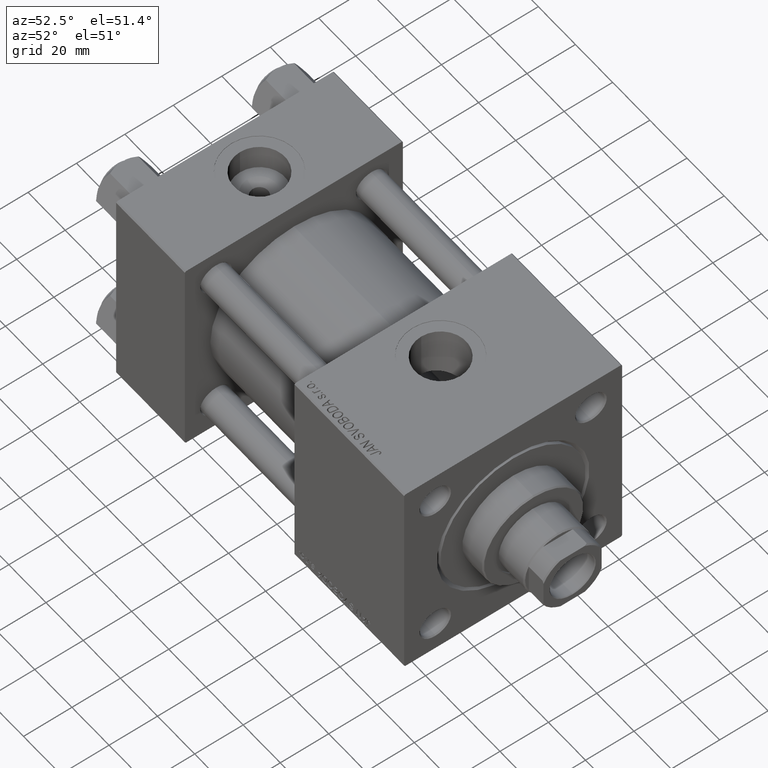
[diagram: clean part render]
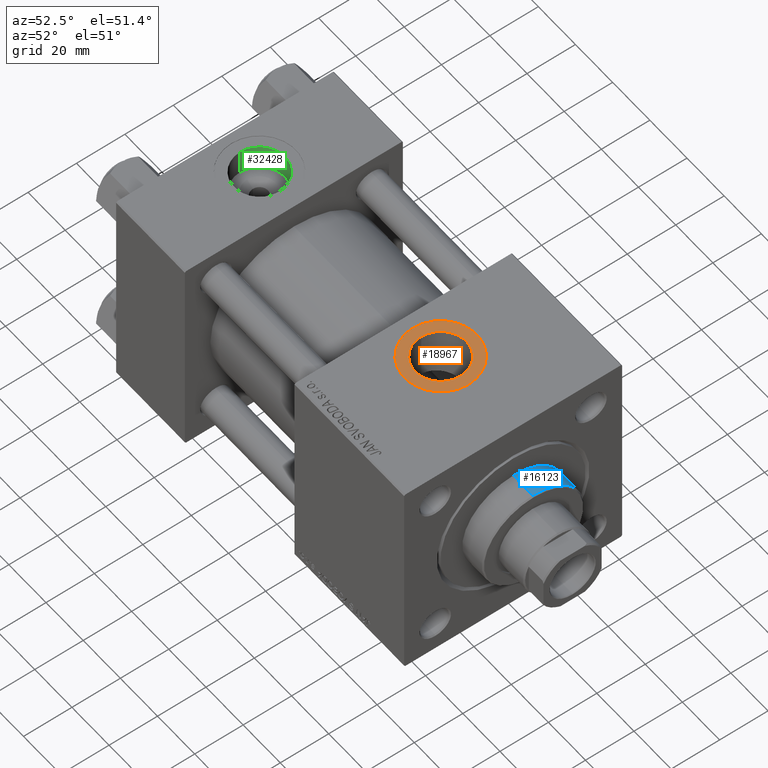
[diagram: same view with three faces highlighted in distinct colors, each labeled with its STEP entity id]
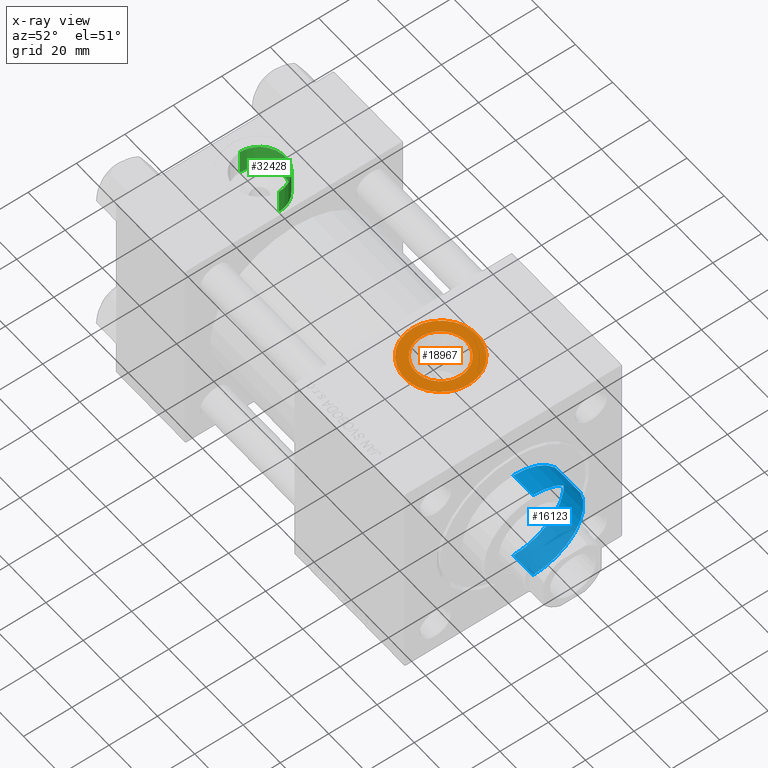
[diagram: x-ray of the same camera — body ghosted, the three highlighted faces saturated]
A machine part, auxiliary view with three faces highlighted in distinct colors.
The next image is the same camera in x-ray (body ghosted, the three faces saturated) — at least one of them is partly hidden behind the body in this view.
Their STEP definitions:

[orange] entity #18967 — the highlighted planar face has unit normal (0, 0, 1).
#4692 = CIRCLE ( 'NONE', #21687, 15.00000000000000000 ) ;
#4967 = PLANE ( 'NONE',  #12542 ) ;
#7073 = DIRECTION ( 'NONE',  ( 1.000000000000000000, 0.000000000000000000, 0.000000000000000000 ) ) ;
#8277 = FACE_OUTER_BOUND ( 'NONE', #14888, .T. ) ;
#8520 = DIRECTION ( 'NONE',  ( 1.000000000000000000, 0.000000000000000000, -0.000000000000000000 ) ) ;
#9937 = CARTESIAN_POINT ( 'NONE',  ( 126.4800000000000040, -5.655464058400803678E-15, 44.80000000000000426 ) ) ;
#10392 = CARTESIAN_POINT ( 'NONE',  ( 100.9999999999999858, -5.101923705186199578E-15, 44.80000000000000426 ) ) ;
#10630 = CARTESIAN_POINT ( 'NONE',  ( 116.0000000000000000, -6.938893903907229955E-15, 44.80000000000000426 ) ) ;
#11082 = FACE_BOUND ( 'NONE', #49132, .T. ) ;
#12283 = VERTEX_POINT ( 'NONE', #10392 ) ;
#12542 = AXIS2_PLACEMENT_3D ( 'NONE', #27306, #23248, #8520 ) ;
#13300 = CARTESIAN_POINT ( 'NONE',  ( 131.0000000000000000, -6.938893903907229955E-15, 44.80000000000000426 ) ) ;
#14888 = EDGE_LOOP ( 'NONE', ( #46369, #20458 ) ) ;
#18310 = DIRECTION ( 'NONE',  ( 1.000000000000000000, 0.000000000000000000, 0.000000000000000000 ) ) ;
#18967 = ADVANCED_FACE ( 'NONE', ( #11082, #8277 ), #4967, .T. ) ;
#19395 = EDGE_CURVE ( 'NONE', #39317, #12283, #19830, .T. ) ;
#19830 = CIRCLE ( 'NONE', #48239, 15.00000000000000000 ) ;
#20458 = ORIENTED_EDGE ( 'NONE', *, *, #26358, .T. ) ;
#21687 = AXIS2_PLACEMENT_3D ( 'NONE', #35565, #48030, #31533 ) ;
#22251 = ORIENTED_EDGE ( 'NONE', *, *, #33546, .T. ) ;
#22694 = CARTESIAN_POINT ( 'NONE',  ( 105.5199999999999960, -6.938893903907229955E-15, 44.80000000000000426 ) ) ;
#22853 = CARTESIAN_POINT ( 'NONE',  ( 116.0000000000000000, -6.938893903907229955E-15, 44.80000000000000426 ) ) ;
#23248 = DIRECTION ( 'NONE',  ( 0.000000000000000000, 0.000000000000000000, 1.000000000000000000 ) ) ;
#23453 = CIRCLE ( 'NONE', #49412, 10.48000000000000398 ) ;
#23522 = VERTEX_POINT ( 'NONE', #9937 ) ;
#24105 = AXIS2_PLACEMENT_3D ( 'NONE', #10630, #38024, #7073 ) ;
#24945 = EDGE_CURVE ( 'NONE', #47770, #23522, #26530, .T. ) ;
#25938 = DIRECTION ( 'NONE',  ( 0.000000000000000000, 0.000000000000000000, 1.000000000000000000 ) ) ;
#26358 = EDGE_CURVE ( 'NONE', #12283, #39317, #4692, .T. ) ;
#26530 = CIRCLE ( 'NONE', #24105, 10.48000000000000398 ) ;
#27306 = CARTESIAN_POINT ( 'NONE',  ( 116.0000000000000000, -6.938893903907229955E-15, 44.80000000000000426 ) ) ;
#29757 = CARTESIAN_POINT ( 'NONE',  ( 116.0000000000000000, -6.938893903907229955E-15, 44.80000000000000426 ) ) ;
#31533 = DIRECTION ( 'NONE',  ( 1.000000000000000000, 0.000000000000000000, 0.000000000000000000 ) ) ;
#33546 = EDGE_CURVE ( 'NONE', #23522, #47770, #23453, .T. ) ;
#34765 = DIRECTION ( 'NONE',  ( 1.000000000000000000, 0.000000000000000000, 0.000000000000000000 ) ) ;
#35565 = CARTESIAN_POINT ( 'NONE',  ( 116.0000000000000000, -6.938893903907229955E-15, 44.80000000000000426 ) ) ;
#38024 = DIRECTION ( 'NONE',  ( -0.000000000000000000, -0.000000000000000000, -1.000000000000000000 ) ) ;
#39317 = VERTEX_POINT ( 'NONE', #13300 ) ;
#45999 = ORIENTED_EDGE ( 'NONE', *, *, #24945, .T. ) ;
#46369 = ORIENTED_EDGE ( 'NONE', *, *, #19395, .T. ) ;
#47770 = VERTEX_POINT ( 'NONE', #22694 ) ;
#48030 = DIRECTION ( 'NONE',  ( 0.000000000000000000, 0.000000000000000000, 1.000000000000000000 ) ) ;
#48239 = AXIS2_PLACEMENT_3D ( 'NONE', #29757, #25938, #18310 ) ;
#49132 = EDGE_LOOP ( 'NONE', ( #45999, #22251 ) ) ;
#49412 = AXIS2_PLACEMENT_3D ( 'NONE', #22853, #50029, #34765 ) ;
#50029 = DIRECTION ( 'NONE',  ( -0.000000000000000000, -0.000000000000000000, -1.000000000000000000 ) ) ;

[blue] entity #16123 — the highlighted cylindrical surface (partial cylindrical patch) has radius 21 mm, axis along (-1, -0, 0).
#961 = AXIS2_PLACEMENT_3D ( 'NONE', #30931, #11870, #50224 ) ;
#1261 = DIRECTION ( 'NONE',  ( -0.000000000000000000, -0.000000000000000000, -1.000000000000000000 ) ) ;
#1594 = CARTESIAN_POINT ( 'NONE',  ( -21.00000000000000000, 0.000000000000000000, 28.69999999999999929 ) ) ;
#2803 = VERTEX_POINT ( 'NONE', #12693 ) ;
#5583 = CARTESIAN_POINT ( 'NONE',  ( 0.000000000000000000, 0.000000000000000000, 39.69999999999999574 ) ) ;
#8602 = VECTOR ( 'NONE', #38443, 1000.000000000000000 ) ;
#8674 = EDGE_CURVE ( 'NONE', #46769, #47004, #45689, .T. ) ;
#10769 = CARTESIAN_POINT ( 'NONE',  ( -21.00000000000000000, 0.000000000000000000, 39.19999999999999574 ) ) ;
#11481 = VERTEX_POINT ( 'NONE', #42278 ) ;
#11870 = DIRECTION ( 'NONE',  ( 0.000000000000000000, 0.000000000000000000, -1.000000000000000000 ) ) ;
#12693 = CARTESIAN_POINT ( 'NONE',  ( 21.00000000000000000, 2.571758278209441661E-15, 28.69999999999999929 ) ) ;
#16123 = ADVANCED_FACE ( 'NONE', ( #41103 ), #36022, .T. ) ;
#18441 = AXIS2_PLACEMENT_3D ( 'NONE', #19463, #25018, #47890 ) ;
#19463 = CARTESIAN_POINT ( 'NONE',  ( 0.000000000000000000, 0.000000000000000000, 28.69999999999999929 ) ) ;
#20858 = ORIENTED_EDGE ( 'NONE', *, *, #8674, .F. ) ;
#22783 = EDGE_CURVE ( 'NONE', #11481, #2803, #38950, .T. ) ;
#22835 = CIRCLE ( 'NONE', #961, 21.00000000000000000 ) ;
#23119 = EDGE_LOOP ( 'NONE', ( #47083, #42968, #36735, #20858 ) ) ;
#25018 = DIRECTION ( 'NONE',  ( 0.000000000000000000, 0.000000000000000000, 1.000000000000000000 ) ) ;
#25527 = AXIS2_PLACEMENT_3D ( 'NONE', #5583, #1261, #28926 ) ;
#25809 = EDGE_CURVE ( 'NONE', #2803, #47004, #41154, .T. ) ;
#28926 = DIRECTION ( 'NONE',  ( -1.000000000000000000, 0.000000000000000000, 0.000000000000000000 ) ) ;
#30931 = CARTESIAN_POINT ( 'NONE',  ( 0.000000000000000000, 0.000000000000000000, 39.19999999999999574 ) ) ;
#36022 = CYLINDRICAL_SURFACE ( 'NONE', #25527, 21.00000000000000000 ) ;
#36735 = ORIENTED_EDGE ( 'NONE', *, *, #25809, .T. ) ;
#38443 = DIRECTION ( 'NONE',  ( -0.000000000000000000, -0.000000000000000000, -1.000000000000000000 ) ) ;
#38950 = LINE ( 'NONE', #42266, #8602 ) ;
#40114 = EDGE_CURVE ( 'NONE', #46769, #11481, #22835, .T. ) ;
#41103 = FACE_OUTER_BOUND ( 'NONE', #23119, .T. ) ;
#41128 = CARTESIAN_POINT ( 'NONE',  ( -21.00000000000000000, 0.000000000000000000, 39.69999999999999574 ) ) ;
#41154 = CIRCLE ( 'NONE', #18441, 21.00000000000000000 ) ;
#41381 = DIRECTION ( 'NONE',  ( -0.000000000000000000, -0.000000000000000000, -1.000000000000000000 ) ) ;
#42266 = CARTESIAN_POINT ( 'NONE',  ( 21.00000000000000000, 2.571758278209441661E-15, 39.69999999999999574 ) ) ;
#42278 = CARTESIAN_POINT ( 'NONE',  ( 21.00000000000000000, 2.571758278209441661E-15, 39.19999999999999574 ) ) ;
#42968 = ORIENTED_EDGE ( 'NONE', *, *, #22783, .T. ) ;
#45689 = LINE ( 'NONE', #41128, #48681 ) ;
#46769 = VERTEX_POINT ( 'NONE', #10769 ) ;
#47004 = VERTEX_POINT ( 'NONE', #1594 ) ;
#47083 = ORIENTED_EDGE ( 'NONE', *, *, #40114, .T. ) ;
#47890 = DIRECTION ( 'NONE',  ( 1.000000000000000000, 0.000000000000000000, 0.000000000000000000 ) ) ;
#48681 = VECTOR ( 'NONE', #41381, 1000.000000000000000 ) ;
#50224 = DIRECTION ( 'NONE',  ( 1.000000000000000000, 0.000000000000000000, 0.000000000000000000 ) ) ;

[green] entity #32428 — the highlighted cylindrical surface (edge-blend (fillet) strip) has radius 10.48 mm, axis along (0, 0, 1).
#2157 = EDGE_CURVE ( 'NONE', #13195, #16642, #38040, .T. ) ;
#6448 = LINE ( 'NONE', #21918, #36534 ) ;
#6980 = VERTEX_POINT ( 'NONE', #16609 ) ;
#10893 = CARTESIAN_POINT ( 'NONE',  ( 8.019999999999999574, -1.085963448633122417E-14, 34.19999999999999574 ) ) ;
#10900 = VECTOR ( 'NONE', #44036, 1000.000000000000000 ) ;
#13063 = LINE ( 'NONE', #36901, #10900 ) ;
#13195 = VERTEX_POINT ( 'NONE', #32998 ) ;
#13849 = EDGE_CURVE ( 'NONE', #6980, #28013, #40044, .T. ) ;
#14303 = DIRECTION ( 'NONE',  ( -0.000000000000000000, -0.000000000000000000, 1.000000000000000000 ) ) ;
#14570 = CARTESIAN_POINT ( 'NONE',  ( 18.50000000000000000, -1.214306433183764966E-14, 44.79999999999999716 ) ) ;
#14778 = DIRECTION ( 'NONE',  ( 1.000000000000000000, 0.000000000000000000, 0.000000000000000000 ) ) ;
#16609 = CARTESIAN_POINT ( 'NONE',  ( 28.98000000000000043, -1.214306433183764966E-14, 34.19999999999999574 ) ) ;
#16642 = VERTEX_POINT ( 'NONE', #24840 ) ;
#18029 = EDGE_CURVE ( 'NONE', #28013, #16642, #13063, .T. ) ;
#18558 = AXIS2_PLACEMENT_3D ( 'NONE', #37612, #34060, #14778 ) ;
#21201 = ORIENTED_EDGE ( 'NONE', *, *, #2157, .T. ) ;
#21918 = CARTESIAN_POINT ( 'NONE',  ( 28.98000000000000043, -1.214306433183764966E-14, 34.19999999999999574 ) ) ;
#22179 = AXIS2_PLACEMENT_3D ( 'NONE', #23701, #31083, #39669 ) ;
#22687 = DIRECTION ( 'NONE',  ( 1.000000000000000000, 0.000000000000000000, 0.000000000000000000 ) ) ;
#23701 = CARTESIAN_POINT ( 'NONE',  ( 18.50000000000000000, -1.214306433183764966E-14, 34.19999999999999574 ) ) ;
#24515 = ORIENTED_EDGE ( 'NONE', *, *, #18029, .F. ) ;
#24840 = CARTESIAN_POINT ( 'NONE',  ( 8.019999999999999574, -1.085963448633122417E-14, 44.79999999999999716 ) ) ;
#25203 = CYLINDRICAL_SURFACE ( 'NONE', #18558, 10.48000000000000043 ) ;
#25737 = DIRECTION ( 'NONE',  ( 0.000000000000000000, 0.000000000000000000, 1.000000000000000000 ) ) ;
#26391 = ORIENTED_EDGE ( 'NONE', *, *, #13849, .F. ) ;
#28013 = VERTEX_POINT ( 'NONE', #10893 ) ;
#31083 = DIRECTION ( 'NONE',  ( 0.000000000000000000, 0.000000000000000000, 1.000000000000000000 ) ) ;
#32428 = ADVANCED_FACE ( 'NONE', ( #32818 ), #25203, .F. ) ;
#32818 = FACE_OUTER_BOUND ( 'NONE', #36013, .T. ) ;
#32998 = CARTESIAN_POINT ( 'NONE',  ( 28.98000000000000043, -1.214306433183764966E-14, 44.79999999999999716 ) ) ;
#34060 = DIRECTION ( 'NONE',  ( -0.000000000000000000, -0.000000000000000000, 1.000000000000000000 ) ) ;
#36013 = EDGE_LOOP ( 'NONE', ( #24515, #26391, #36811, #21201 ) ) ;
#36534 = VECTOR ( 'NONE', #14303, 1000.000000000000000 ) ;
#36694 = EDGE_CURVE ( 'NONE', #6980, #13195, #6448, .T. ) ;
#36811 = ORIENTED_EDGE ( 'NONE', *, *, #36694, .T. ) ;
#36901 = CARTESIAN_POINT ( 'NONE',  ( 8.019999999999999574, -1.085963448633122417E-14, 34.19999999999999574 ) ) ;
#37612 = CARTESIAN_POINT ( 'NONE',  ( 18.50000000000000000, -1.214306433183764966E-14, 34.19999999999999574 ) ) ;
#38040 = CIRCLE ( 'NONE', #47763, 10.48000000000000043 ) ;
#39669 = DIRECTION ( 'NONE',  ( 1.000000000000000000, 0.000000000000000000, 0.000000000000000000 ) ) ;
#40044 = CIRCLE ( 'NONE', #22179, 10.48000000000000043 ) ;
#44036 = DIRECTION ( 'NONE',  ( -0.000000000000000000, -0.000000000000000000, 1.000000000000000000 ) ) ;
#47763 = AXIS2_PLACEMENT_3D ( 'NONE', #14570, #25737, #22687 ) ;